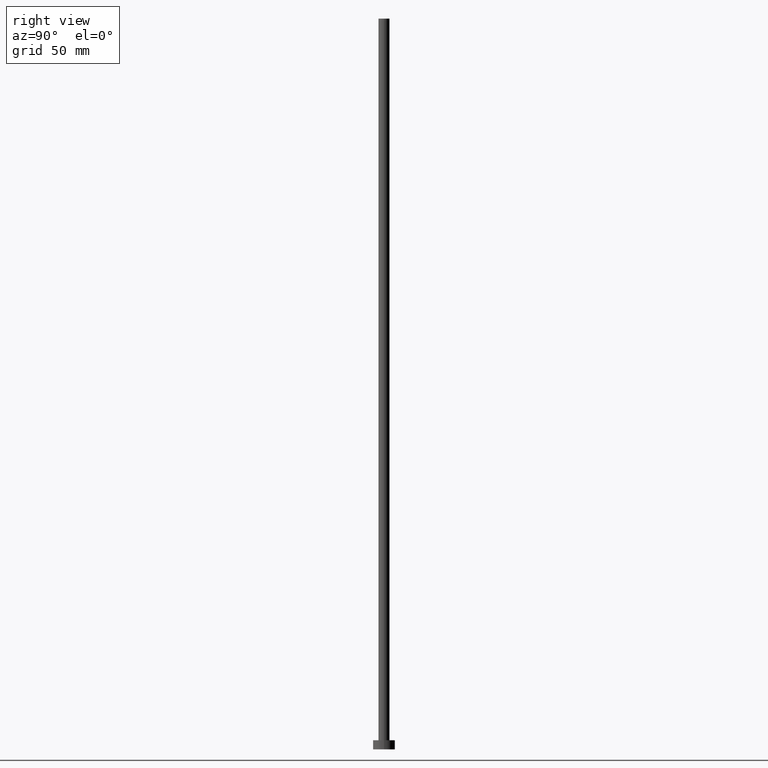
[diagram: clean part render]
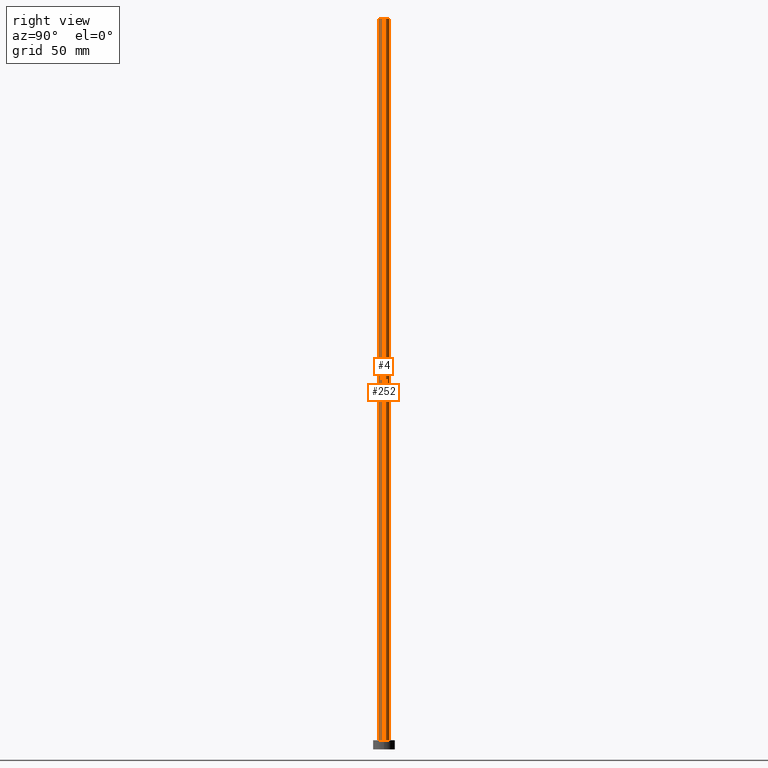
[diagram: same view with one multi-face feature highlighted, each face labeled with its STEP entity id]
A machine part, right view. The highlighted faces form ONE feature: a constant-radius fillet chain: 2 tangent blend faces with common blend radius 3 mm. The faces share edges in the B-rep.
Their STEP definitions:
[1] entity #252 (Cylinder):
#1 = LINE ( 'NONE', #103, #228 ) ;
#6 = ORIENTED_EDGE ( 'NONE', *, *, #196, .T. ) ;
#21 = DIRECTION ( 'NONE',  ( 1.000000000000000000, 0.000000000000000000, 0.000000000000000000 ) ) ;
#22 = EDGE_CURVE ( 'NONE', #47, #180, #245, .T. ) ;
#26 = DIRECTION ( 'NONE',  ( 1.000000000000000000, 0.000000000000000000, 0.000000000000000000 ) ) ;
#28 = ORIENTED_EDGE ( 'NONE', *, *, #22, .T. ) ;
#33 = CARTESIAN_POINT ( 'NONE',  ( 3.000000000000000444, 3.673940397442059868E-16, 5.000000000000000000 ) ) ;
#47 = VERTEX_POINT ( 'NONE', #197 ) ;
#49 = EDGE_LOOP ( 'NONE', ( #186, #28, #6, #220 ) ) ;
#52 = VECTOR ( 'NONE', #126, 1000.000000000000000 ) ;
#65 = DIRECTION ( 'NONE',  ( -0.000000000000000000, -0.000000000000000000, -1.000000000000000000 ) ) ;
#69 = FACE_OUTER_BOUND ( 'NONE', #49, .T. ) ;
#75 = CIRCLE ( 'NONE', #208, 3.000000000000000444 ) ;
#82 = CARTESIAN_POINT ( 'NONE',  ( 0.000000000000000000, 0.000000000000000000, 400.0000000000000000 ) ) ;
#94 = AXIS2_PLACEMENT_3D ( 'NONE', #242, #65, #104 ) ;
#103 = CARTESIAN_POINT ( 'NONE',  ( -3.000000000000000444, 0.000000000000000000, 400.0000000000000000 ) ) ;
#104 = DIRECTION ( 'NONE',  ( -1.000000000000000000, 0.000000000000000000, 0.000000000000000000 ) ) ;
#112 = CARTESIAN_POINT ( 'NONE',  ( 0.000000000000000000, 0.000000000000000000, 5.000000000000000000 ) ) ;
#121 = DIRECTION ( 'NONE',  ( -0.000000000000000000, -0.000000000000000000, -1.000000000000000000 ) ) ;
#126 = DIRECTION ( 'NONE',  ( -0.000000000000000000, -0.000000000000000000, -1.000000000000000000 ) ) ;
#129 = EDGE_CURVE ( 'NONE', #241, #182, #1, .T. ) ;
#146 = CIRCLE ( 'NONE', #152, 3.000000000000000444 ) ;
#150 = DIRECTION ( 'NONE',  ( 0.000000000000000000, 0.000000000000000000, 1.000000000000000000 ) ) ;
#152 = AXIS2_PLACEMENT_3D ( 'NONE', #112, #150, #21 ) ;
#161 = CARTESIAN_POINT ( 'NONE',  ( 3.000000000000000444, 3.673940397442059868E-16, 400.0000000000000000 ) ) ;
#165 = CYLINDRICAL_SURFACE ( 'NONE', #94, 3.000000000000000444 ) ;
#180 = VERTEX_POINT ( 'NONE', #33 ) ;
#182 = VERTEX_POINT ( 'NONE', #210 ) ;
#186 = ORIENTED_EDGE ( 'NONE', *, *, #240, .F. ) ;
#196 = EDGE_CURVE ( 'NONE', #180, #182, #146, .T. ) ;
#197 = CARTESIAN_POINT ( 'NONE',  ( 3.000000000000000444, 3.673940397442059868E-16, 400.0000000000000000 ) ) ;
#200 = DIRECTION ( 'NONE',  ( 0.000000000000000000, 0.000000000000000000, 1.000000000000000000 ) ) ;
#204 = CARTESIAN_POINT ( 'NONE',  ( -3.000000000000000444, 0.000000000000000000, 400.0000000000000000 ) ) ;
#208 = AXIS2_PLACEMENT_3D ( 'NONE', #82, #200, #26 ) ;
#210 = CARTESIAN_POINT ( 'NONE',  ( -3.000000000000000444, 0.000000000000000000, 5.000000000000000000 ) ) ;
#220 = ORIENTED_EDGE ( 'NONE', *, *, #129, .F. ) ;
#228 = VECTOR ( 'NONE', #121, 1000.000000000000000 ) ;
#240 = EDGE_CURVE ( 'NONE', #47, #241, #75, .T. ) ;
#241 = VERTEX_POINT ( 'NONE', #204 ) ;
#242 = CARTESIAN_POINT ( 'NONE',  ( 0.000000000000000000, 0.000000000000000000, 400.0000000000000000 ) ) ;
#245 = LINE ( 'NONE', #161, #52 ) ;
#252 = ADVANCED_FACE ( 'NONE', ( #69 ), #165, .T. ) ;
[2] entity #4 (Cylinder):
#1 = LINE ( 'NONE', #103, #228 ) ;
#4 = ADVANCED_FACE ( 'NONE', ( #107 ), #188, .T. ) ;
#9 = DIRECTION ( 'NONE',  ( 1.000000000000000000, 0.000000000000000000, 0.000000000000000000 ) ) ;
#10 = DIRECTION ( 'NONE',  ( 0.000000000000000000, 0.000000000000000000, 1.000000000000000000 ) ) ;
#12 = ORIENTED_EDGE ( 'NONE', *, *, #129, .T. ) ;
#14 = CARTESIAN_POINT ( 'NONE',  ( 0.000000000000000000, 0.000000000000000000, 400.0000000000000000 ) ) ;
#16 = DIRECTION ( 'NONE',  ( -0.000000000000000000, -0.000000000000000000, -1.000000000000000000 ) ) ;
#22 = EDGE_CURVE ( 'NONE', #47, #180, #245, .T. ) ;
#31 = DIRECTION ( 'NONE',  ( -1.000000000000000000, 0.000000000000000000, 0.000000000000000000 ) ) ;
#33 = CARTESIAN_POINT ( 'NONE',  ( 3.000000000000000444, 3.673940397442059868E-16, 5.000000000000000000 ) ) ;
#47 = VERTEX_POINT ( 'NONE', #197 ) ;
#51 = ORIENTED_EDGE ( 'NONE', *, *, #106, .F. ) ;
#52 = VECTOR ( 'NONE', #126, 1000.000000000000000 ) ;
#58 = DIRECTION ( 'NONE',  ( 1.000000000000000000, 0.000000000000000000, 0.000000000000000000 ) ) ;
#60 = EDGE_LOOP ( 'NONE', ( #230, #51, #12, #143 ) ) ;
#67 = AXIS2_PLACEMENT_3D ( 'NONE', #14, #16, #31 ) ;
#83 = DIRECTION ( 'NONE',  ( 0.000000000000000000, 0.000000000000000000, 1.000000000000000000 ) ) ;
#89 = CIRCLE ( 'NONE', #108, 3.000000000000000444 ) ;
#96 = CARTESIAN_POINT ( 'NONE',  ( 0.000000000000000000, 0.000000000000000000, 400.0000000000000000 ) ) ;
#103 = CARTESIAN_POINT ( 'NONE',  ( -3.000000000000000444, 0.000000000000000000, 400.0000000000000000 ) ) ;
#106 = EDGE_CURVE ( 'NONE', #241, #47, #246, .T. ) ;
#107 = FACE_OUTER_BOUND ( 'NONE', #60, .T. ) ;
#108 = AXIS2_PLACEMENT_3D ( 'NONE', #185, #10, #58 ) ;
#121 = DIRECTION ( 'NONE',  ( -0.000000000000000000, -0.000000000000000000, -1.000000000000000000 ) ) ;
#126 = DIRECTION ( 'NONE',  ( -0.000000000000000000, -0.000000000000000000, -1.000000000000000000 ) ) ;
#129 = EDGE_CURVE ( 'NONE', #241, #182, #1, .T. ) ;
#143 = ORIENTED_EDGE ( 'NONE', *, *, #154, .T. ) ;
#154 = EDGE_CURVE ( 'NONE', #182, #180, #89, .T. ) ;
#161 = CARTESIAN_POINT ( 'NONE',  ( 3.000000000000000444, 3.673940397442059868E-16, 400.0000000000000000 ) ) ;
#171 = AXIS2_PLACEMENT_3D ( 'NONE', #96, #83, #9 ) ;
#180 = VERTEX_POINT ( 'NONE', #33 ) ;
#182 = VERTEX_POINT ( 'NONE', #210 ) ;
#185 = CARTESIAN_POINT ( 'NONE',  ( 0.000000000000000000, 0.000000000000000000, 5.000000000000000000 ) ) ;
#188 = CYLINDRICAL_SURFACE ( 'NONE', #67, 3.000000000000000444 ) ;
#197 = CARTESIAN_POINT ( 'NONE',  ( 3.000000000000000444, 3.673940397442059868E-16, 400.0000000000000000 ) ) ;
#204 = CARTESIAN_POINT ( 'NONE',  ( -3.000000000000000444, 0.000000000000000000, 400.0000000000000000 ) ) ;
#210 = CARTESIAN_POINT ( 'NONE',  ( -3.000000000000000444, 0.000000000000000000, 5.000000000000000000 ) ) ;
#228 = VECTOR ( 'NONE', #121, 1000.000000000000000 ) ;
#230 = ORIENTED_EDGE ( 'NONE', *, *, #22, .F. ) ;
#241 = VERTEX_POINT ( 'NONE', #204 ) ;
#245 = LINE ( 'NONE', #161, #52 ) ;
#246 = CIRCLE ( 'NONE', #171, 3.000000000000000444 ) ;